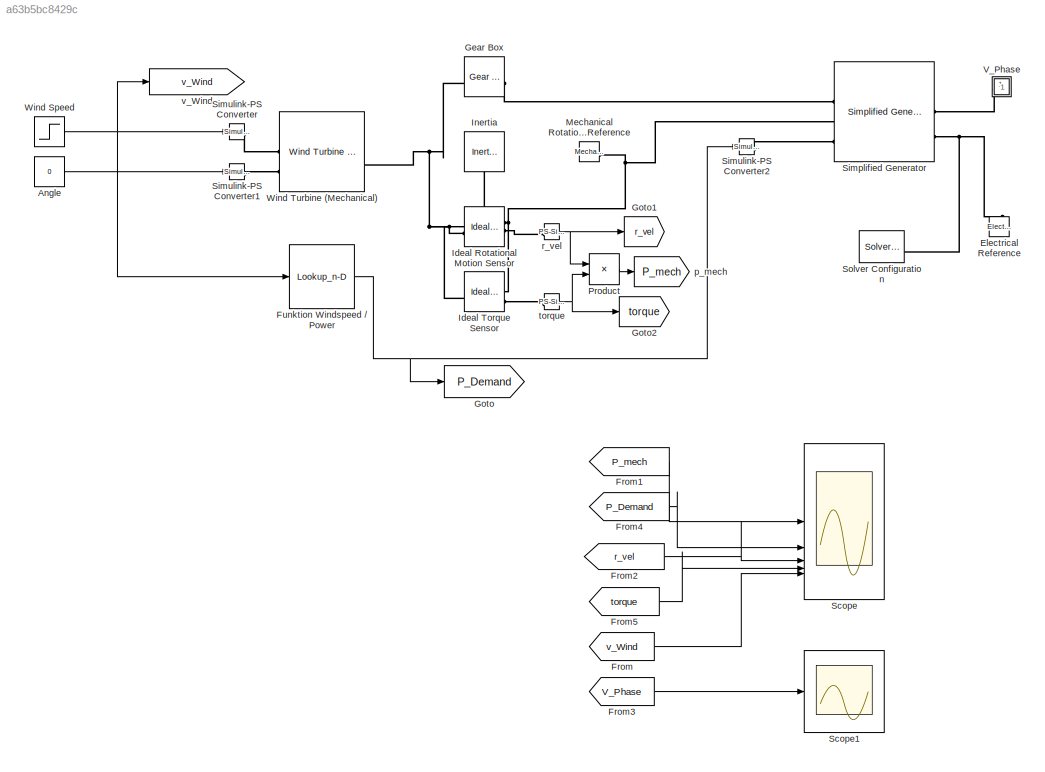
MODEL slx_a63b5bc8429c
KIND model
CONFIG AbsTol = auto
CONFIG EnableMultiTasking = off
CONFIG FixedStep = auto
CONFIG MaxStep = auto
CONFIG MinStep = auto
CONFIG RelTol = 1e-3
CONFIG SampleTimeConstraint = Unconstrained
CONFIG SolverName = VariableStepAuto
CONFIG StartTime = 0.0
CONFIG StopTime = 5
BLOCK [Constant] Angle
  Value = 0
BLOCK [Reference] Electrical Reference  REF=fl_lib/Electrical/Electrical Elements/Electrical Reference
  NameLocation = right
  SourceBlock = fl_lib/Electrical/Electrical Elements/Electrical Reference
  SourceType = Electrical Reference
BLOCK [From] From
  GotoTag = v_Wind
BLOCK [From] From1
  GotoTag = P_mech
BLOCK [From] From2
  GotoTag = r_vel
BLOCK [From] From3
  GotoTag = V_Phase
  TagVisibility = global
BLOCK [From] From4
  GotoTag = P_Demand
BLOCK [From] From5
  GotoTag = torque
BLOCK [Lookup_n-D] Funktion Windspeed // Power
  BreakpointsForDimension1 = [3 4 5 6 7 8 9 10 11 12 13]
  InputPortMap = u0
  InternalRulePriority = Speed
  NumberOfTableDimensions = 1
  RndMeth = Simplest
  Table = [0 93.299999999999997 211.30000000000001 390.89999999999998 601.10000000000002 884.5 1247.0999999999999 1594.3 1861.2 1993.3 2007]
BLOCK [Reference] Gear Box  REF=fl_lib/Mechanical/Mechanisms/Gear Box
  SourceBlock = fl_lib/Mechanical/Mechanisms/Gear Box
  SourceType = Gear Box
BLOCK [Goto] Goto
  GotoTag = P_Demand
BLOCK [Goto] Goto1
  GotoTag = r_vel
BLOCK [Goto] Goto2
  GotoTag = torque
BLOCK [Reference] Ideal Rotational Motion Sensor  REF=fl_lib/Mechanical/Mechanical Sensors/Ideal Rotational
Motion Sensor
  SourceBlock = fl_lib/Mechanical/Mechanical Sensors/Ideal Rotational\nMotion Sensor
  SourceType = Ideal Rotational\nMotion Sensor
BLOCK [Reference] Ideal Torque Sensor  REF=fl_lib/Mechanical/Mechanical Sensors/Ideal Torque Sensor
  SourceBlock = fl_lib/Mechanical/Mechanical Sensors/Ideal Torque Sensor
  SourceType = Ideal Torque Sensor
BLOCK [Reference] Inertia  REF=fl_lib/Mechanical/Rotational Elements/Inertia
  NameLocation = top
  SourceBlock = fl_lib/Mechanical/Rotational Elements/Inertia
  SourceType = Inertia
BLOCK [Reference] Mechanical Rotational Reference  REF=fl_lib/Mechanical/Rotational Elements/Mechanical
Rotational Reference
  SourceBlock = fl_lib/Mechanical/Rotational Elements/Mechanical\nRotational Reference
  SourceType = Mechanical\nRotational Reference
BLOCK [Product] Product
BLOCK [Scope] Scope
  Floating = off
  NumInputPorts = 5
  ScopeSpecificationString = Simulink.scopes.TimeScopeBlockCfg('CurrentConfiguration', extmgr.ConfigurationSet(extmgr.Configuration('Core','General UI',true,'FigureColor',[1 1 1]),extmgr.Configuration('Core','Source UI',true),extmgr.Configuration('Sources','WiredSimulink',true),extmgr.Configuration('Visuals','Time Domain',true,'SerializedDisplays',{struct('MinYLimReal','-5461.97089','MaxYLimReal','49157.73801','YLabelReal',''...<+2194ch>
BLOCK [Scope] Scope1
  Floating = off
  NumInputPorts = 1
  ScopeSpecificationString = Simulink.scopes.TimeScopeBlockCfg('CurrentConfiguration', extmgr.ConfigurationSet(extmgr.Configuration('Core','General UI',true),extmgr.Configuration('Core','Source UI',true),extmgr.Configuration('Sources','WiredSimulink',true,'DataLoggingVariableName','ScopeData2'),extmgr.Configuration('Visuals','Time Domain',true,'SerializedDisplays',{struct('MinYLimReal','-649.88449','MaxYLimReal','671.44935','...<+1611ch>
BLOCK [Reference] Simplified Generator  REF=ee_lib/Electromechanical/Simplified Generator
  SourceBlock = ee_lib/Electromechanical/Simplified Generator
  SourceType = Simplified Generator
BLOCK [Reference] Simulink-PS Converter  REF=nesl_utility/Simulink-PS
Converter
  SourceBlock = nesl_utility/Simulink-PS\nConverter
  SourceType = Simulink-PS\nConverter
BLOCK [Reference] Simulink-PS Converter1  REF=nesl_utility/Simulink-PS
Converter
  SourceBlock = nesl_utility/Simulink-PS\nConverter
  SourceType = Simulink-PS\nConverter
BLOCK [Reference] Simulink-PS Converter2  REF=nesl_utility/Simulink-PS
Converter
  SourceBlock = nesl_utility/Simulink-PS\nConverter
  SourceType = Simulink-PS\nConverter
BLOCK [Reference] Solver Configuration  REF=nesl_utility/Solver
Configuration
  SourceBlock = nesl_utility/Solver\nConfiguration
  SourceType = Solver\nConfiguration
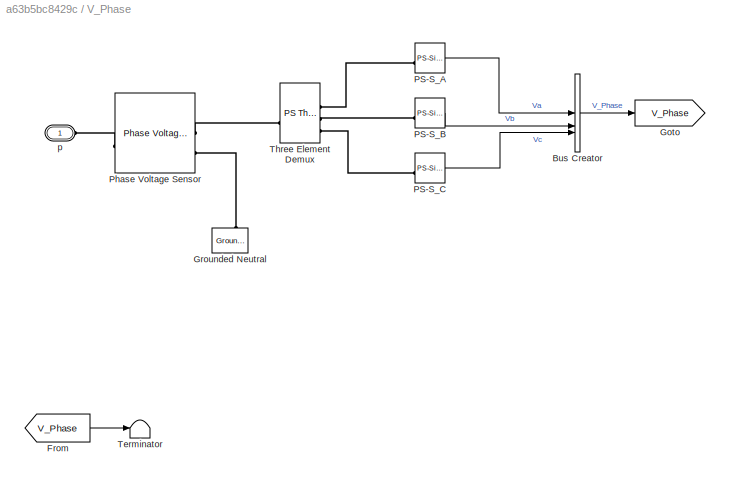
BLOCK [SubSystem] V_Phase
  AttributesFormatString = [V]
  CopyFcn = if strcmp(get_param(gcb, 'LinkStatus'),'implicit') == 0;\nset_param(gcb,'LinkStatus','inactive');                \nset_param(gcb,'LinkStatus','none');    \nend                \nset_param([gcb '/Goto'],'GotoTag', [get(gcbh,'name')]);\nset_param([gcb '/From'],'GotoTag', [get(gcbh,'name')]);\nh = get_param([gcb, '/PS-S'], 'PortHandles');\nset(h.Outport(1), 'SignalNameFromLabel', [get(gcbh,'name')])\nclear h;
  Description = Simscape Probe
  InitFcn = unit=get_param([gcb '/PS-S_A'],'Unit');                                              \nset_param(gcb, 'AttributesFormatString', strcat('[', unit,']'));
  NameChangeFcn = set_param([gcb '/Goto'],'GotoTag', [get(gcbh,'name')]);\nset_param([gcb '/From'],'GotoTag', [get(gcbh,'name')]);\nh = get_param([gcb, '/Bus Creator'], 'PortHandles');\nset(h.Outport(1), 'SignalNameFromLabel', [get(gcbh,'name')])\nclear h;
  OpenFcn = if exist('logsout', 'var')\n  vname = get(gcbh,'name');                 \n  fHandle = findall(0,'Tag',vname);                         \n  if isempty(fHandle)                                        \n  figure('Tag',vname);                                       \n  end;                                                       \n  figure(findobj('Tag',vname));                             \n  plot(logsout.getEl...<+419ch>
BLOCK [BusCreator] V_Phase/Bus Creator
  DisplayOption = bar
  InheritFromInputs = on
  Inputs = 3
BLOCK [From] V_Phase/From
  GotoTag = V_Phase
  TagVisibility = global
BLOCK [Goto] V_Phase/Goto
  GotoTag = V_Phase
  TagVisibility = global
BLOCK [Reference] V_Phase/Grounded Neutral  REF=ee_lib/Connectors &
References/Grounded Neutral
(Three-Phase)
  NameLocation = right
  SourceBlock = ee_lib/Connectors &\nReferences/Grounded Neutral\n(Three-Phase)
  SourceType = Grounded Neutral\n(Three-Phase)
BLOCK [Reference] V_Phase/PS-S_A  REF=nesl_utility/PS-Simulink
Converter
  SourceBlock = nesl_utility/PS-Simulink\nConverter
  SourceType = PS-Simulink\nConverter
BLOCK [Reference] V_Phase/PS-S_B  REF=nesl_utility/PS-Simulink
Converter
  SourceBlock = nesl_utility/PS-Simulink\nConverter
  SourceType = PS-Simulink\nConverter
BLOCK [Reference] V_Phase/PS-S_C  REF=nesl_utility/PS-Simulink
Converter
  SourceBlock = nesl_utility/PS-Simulink\nConverter
  SourceType = PS-Simulink\nConverter
BLOCK [Reference] V_Phase/Phase Voltage Sensor  REF=ee_lib/Sensors &
Transducers/Phase Voltage Sensor
(Three-Phase)
  SourceBlock = ee_lib/Sensors &\nTransducers/Phase Voltage Sensor\n(Three-Phase)
  SourceType = Phase Voltage Sensor\n(Three-Phase)
BLOCK [Terminator] V_Phase/Terminator
BLOCK [Reference] V_Phase/Three Element Demux  REF=fl_lib/Physical Signals/Nonlinear Operators/PS Three-Element
Demux
  SourceBlock = fl_lib/Physical Signals/Nonlinear Operators/PS Three-Element\nDemux
  SourceType = PS Three-Element\nDemux
BLOCK [PMIOPort] V_Phase/p
  Side = Left
BLOCK [Step] Wind Speed
  After = 10
  Before = 5
  NameLocation = top
  SampleTime = 0
  Time = 2
BLOCK [Reference] Wind Turbine (Mechanical)  REF=ee_lib/Electromechanical/Wind Turbine
(Mechanical)
  SourceBlock = ee_lib/Electromechanical/Wind Turbine\n(Mechanical)
  SourceType = Wind Turbine\n(Mechanical)
BLOCK [Goto] p_mech
  GotoTag = P_mech
BLOCK [Reference] r_vel  REF=nesl_utility/PS-Simulink
Converter
  SourceBlock = nesl_utility/PS-Simulink\nConverter
  SourceType = PS-Simulink\nConverter
BLOCK [Reference] torque  REF=nesl_utility/PS-Simulink
Converter
  SourceBlock = nesl_utility/PS-Simulink\nConverter
  SourceType = PS-Simulink\nConverter
BLOCK [Goto] v_Wind
  GotoTag = v_Wind
LINE Angle:1 -> Simulink-PS Converter1:1
LINE From1:1 -> Scope:1
LINE From2:1 -> Scope:3
LINE From3:1 -> Scope1:1
LINE From4:1 -> Scope:2
LINE From5:1 -> Scope:4
LINE From:1 -> Scope:5
NET Funktion Windspeed // Power:1 -> Goto:1, Simulink-PS Converter2:1
LINE Product:1 -> p_mech:1
NET Wind Speed:1 -> Funktion Windspeed // Power:1, Simulink-PS Converter:1, v_Wind:1
NET r_vel:1 -> Goto1:1, Product:1
NET torque:1 -> Goto2:1, Product:2
PNET net1: Electrical Reference:LConn1 -- Simplified Generator:RConn2 -- Solver Configuration:RConn1
PNET net2: Gear Box:LConn1 -- Ideal Rotational Motion Sensor:LConn1 -- Ideal Torque Sensor:LConn1 -- Inertia:LConn1 -- Wind Turbine (Mechanical):RConn1
PLINE Gear Box:RConn1 -- Simplified Generator:LConn1
PNET net3: Ideal Rotational Motion Sensor:RConn1 -- Ideal Torque Sensor:RConn1 -- Mechanical Rotational Reference:LConn1 -- Simplified Generator:LConn2
PLINE Ideal Rotational Motion Sensor:RConn2 -- r_vel:LConn1
PLINE Ideal Torque Sensor:RConn2 -- torque:LConn1
PLINE Simplified Generator:LConn3 -- Simulink-PS Converter2:RConn1
PLINE Simplified Generator:RConn1 -- V_Phase:LConn1
PLINE Simulink-PS Converter1:RConn1 -- Wind Turbine (Mechanical):LConn2
PLINE Simulink-PS Converter:RConn1 -- Wind Turbine (Mechanical):LConn1
note: NET lines group one-source signal fan-out (src -> all destinations, sorted); 1:1 wires keep LINE; PNET lines group multi-terminal physical nets as a canonical sorted terminal list (undirected conserving connections); 2-terminal nets keep the pairwise PLINE form
